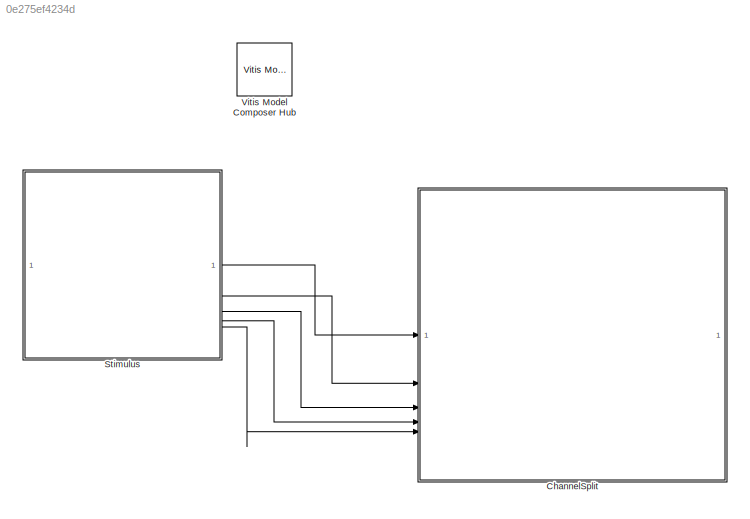
MODEL slx_0e275ef4234d
KIND model
CONFIG AbsTol = auto
CONFIG EnableMultiTasking = off
CONFIG FixedStep = auto
CONFIG MaxStep = auto
CONFIG MinStep = auto
CONFIG RelTol = 1e-3
CONFIG SampleTimeConstraint = Unconstrained
CONFIG SolverName = VariableStepAuto
CONFIG StartTime = 0.0
CONFIG StopTime = 10.0
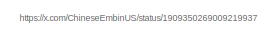
[diagram: ChannelSplit - part 1/12, top left region]
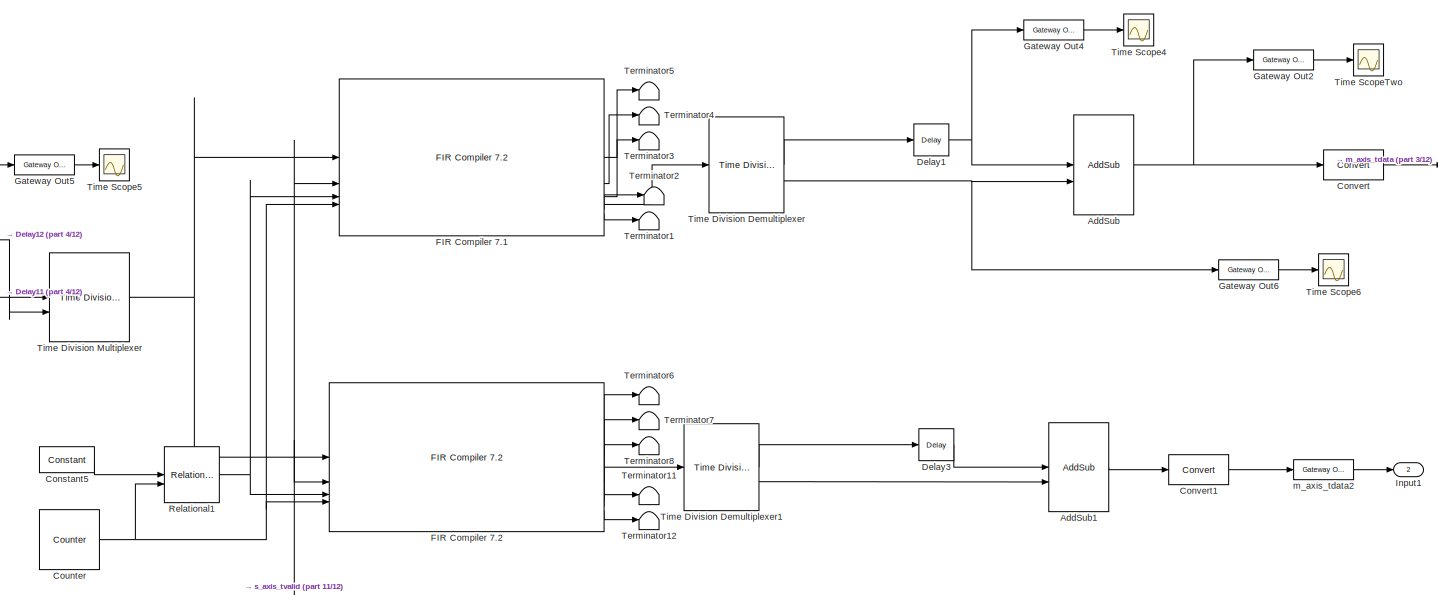
[diagram: ChannelSplit - part 2/12, middle right region]
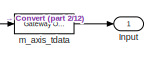
[diagram: ChannelSplit - part 3/12, middle right region]
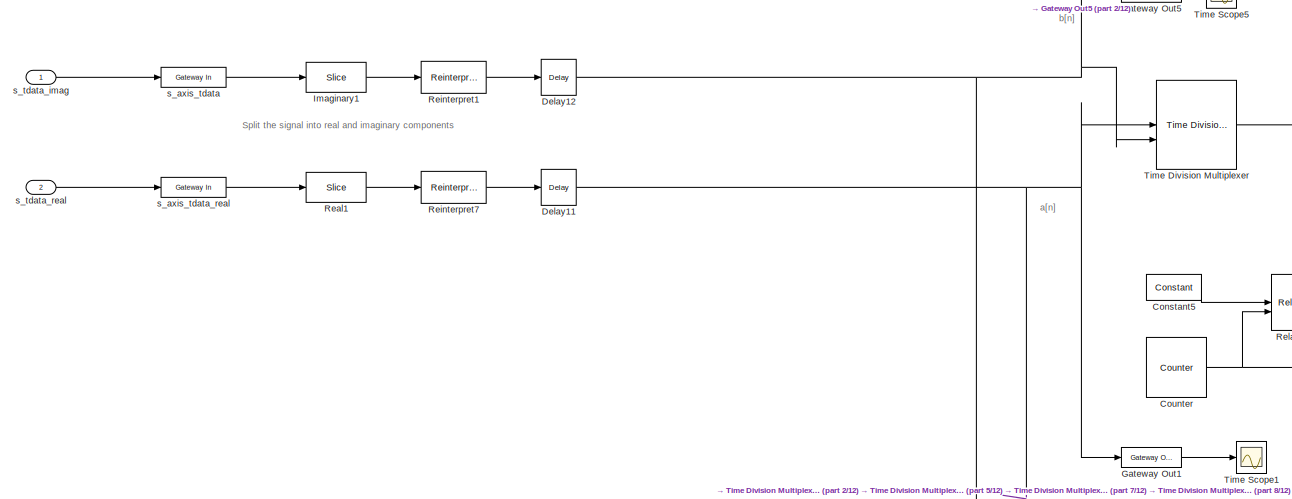
[diagram: ChannelSplit - part 4/12, middle left region]
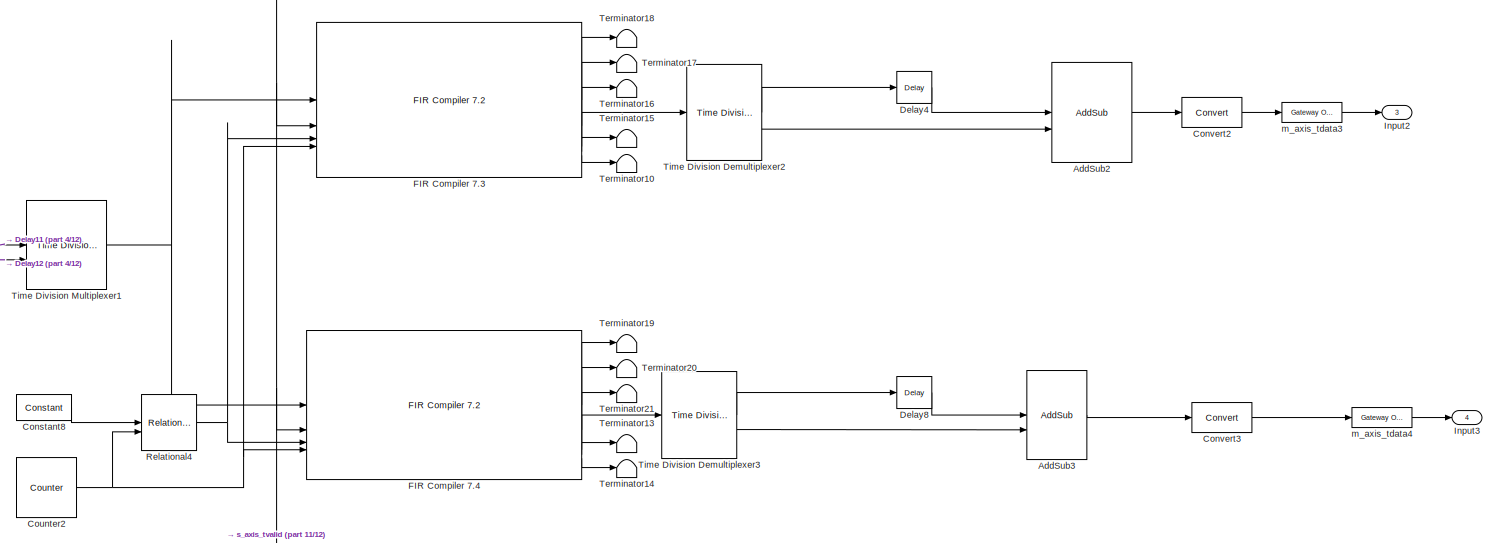
[diagram: ChannelSplit - part 5/12, middle right region]
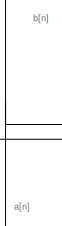
[diagram: ChannelSplit - part 6/12, central region]
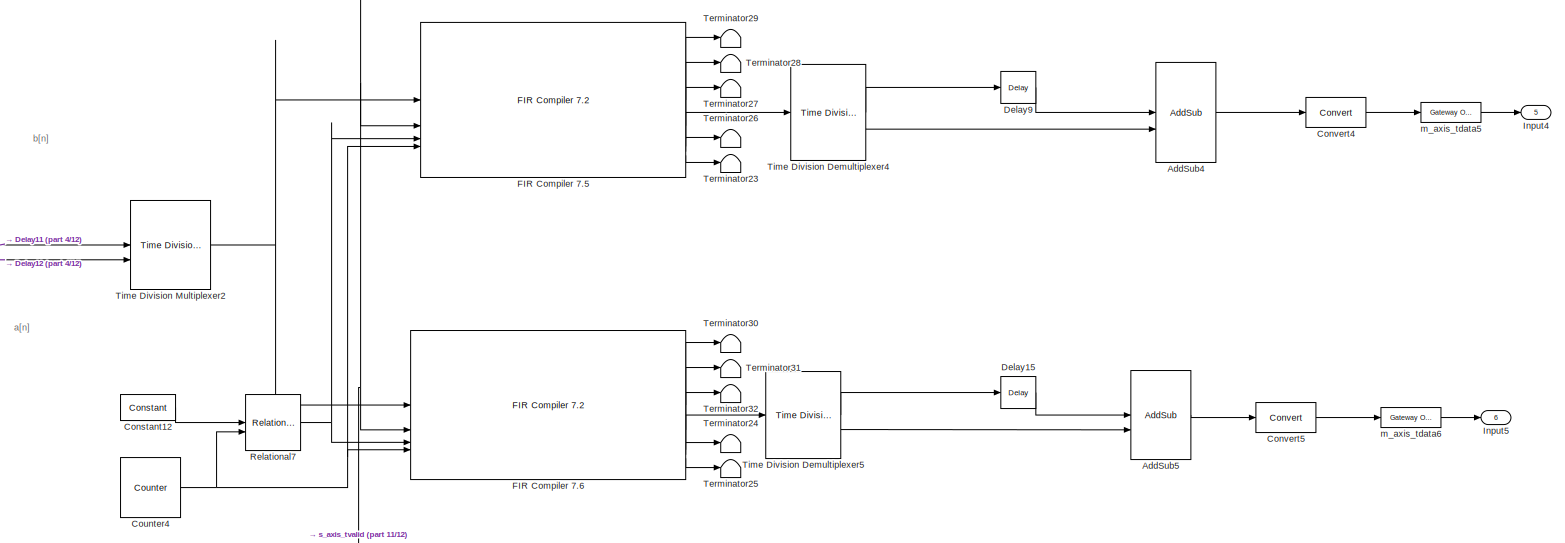
[diagram: ChannelSplit - part 7/12, bottom right region]
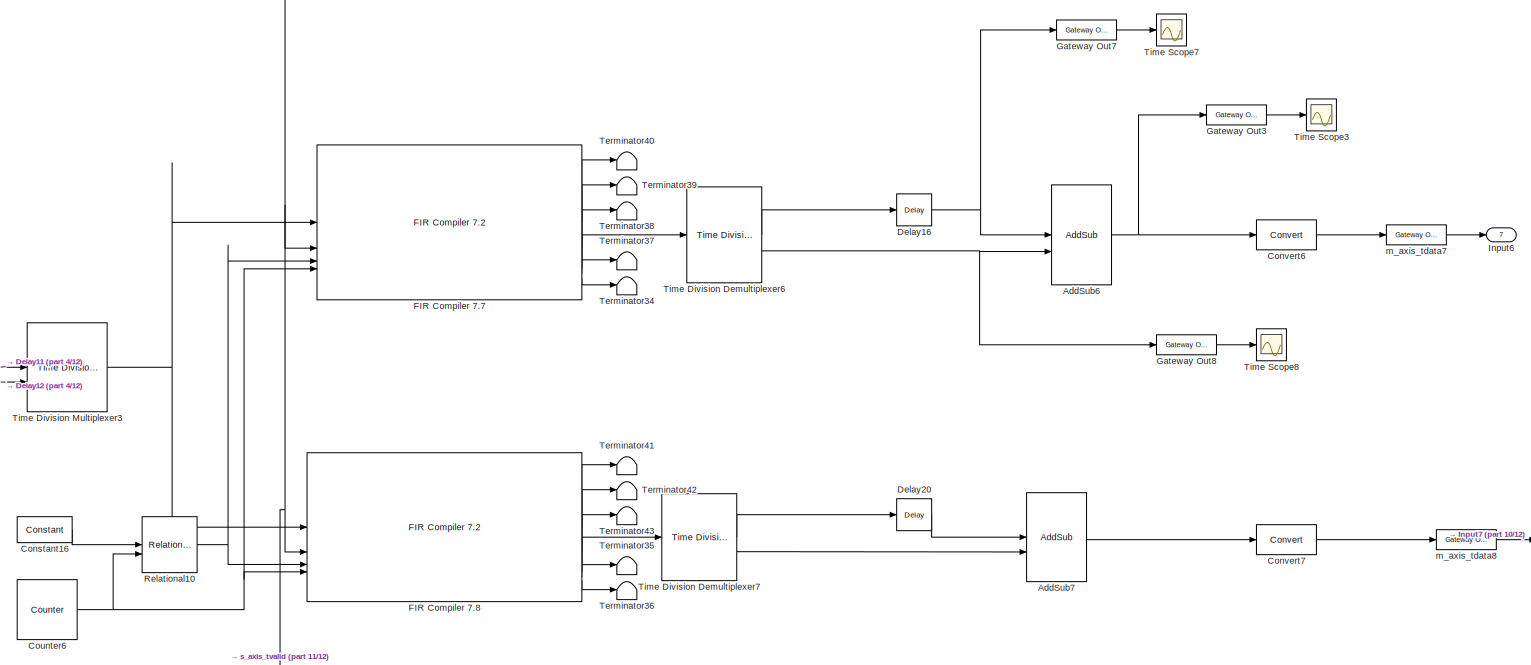
[diagram: ChannelSplit - part 8/12, bottom right region]
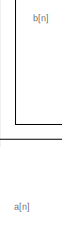
[diagram: ChannelSplit - part 9/12, bottom center region]
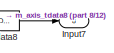
[diagram: ChannelSplit - part 10/12, bottom right region]
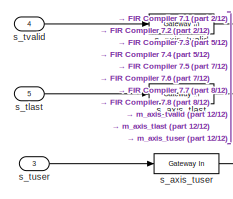
[diagram: ChannelSplit - part 11/12, bottom left region]
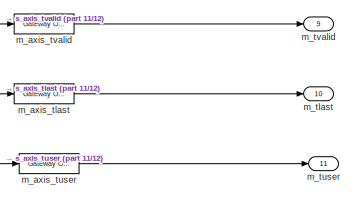
[diagram: ChannelSplit - part 12/12, bottom right region]
BLOCK [SubSystem] ChannelSplit
BLOCK [Reference] ChannelSplit/AddSub  REF=hdlBasic/AddSub
  SourceBlock = hdlBasic/AddSub
  SourceType = Adder/Subtracter Block
BLOCK [Reference] ChannelSplit/AddSub1  REF=hdlBasic/AddSub
  SourceBlock = hdlBasic/AddSub
  SourceType = Adder/Subtracter Block
BLOCK [Reference] ChannelSplit/AddSub2  REF=hdlBasic/AddSub
  SourceBlock = hdlBasic/AddSub
  SourceType = Adder/Subtracter Block
BLOCK [Reference] ChannelSplit/AddSub3  REF=hdlBasic/AddSub
  SourceBlock = hdlBasic/AddSub
  SourceType = Adder/Subtracter Block
BLOCK [Reference] ChannelSplit/AddSub4  REF=hdlBasic/AddSub
  SourceBlock = hdlBasic/AddSub
  SourceType = Adder/Subtracter Block
BLOCK [Reference] ChannelSplit/AddSub5  REF=hdlBasic/AddSub
  SourceBlock = hdlBasic/AddSub
  SourceType = Adder/Subtracter Block
BLOCK [Reference] ChannelSplit/AddSub6  REF=hdlBasic/AddSub
  SourceBlock = hdlBasic/AddSub
  SourceType = Adder/Subtracter Block
BLOCK [Reference] ChannelSplit/AddSub7  REF=hdlBasic/AddSub
  SourceBlock = hdlBasic/AddSub
  SourceType = Adder/Subtracter Block
BLOCK [Reference] ChannelSplit/Constant12  REF=hdlBasic/Constant
  SourceBlock = hdlBasic/Constant
  SourceType = Constant Block Block
BLOCK [Reference] ChannelSplit/Constant16  REF=hdlBasic/Constant
  SourceBlock = hdlBasic/Constant
  SourceType = Constant Block Block
BLOCK [Reference] ChannelSplit/Constant5  REF=hdlBasic/Constant
  SourceBlock = hdlBasic/Constant
  SourceType = Constant Block Block
BLOCK [Reference] ChannelSplit/Constant8  REF=hdlBasic/Constant
  SourceBlock = hdlBasic/Constant
  SourceType = Constant Block Block
BLOCK [Reference] ChannelSplit/Convert  REF=hdlBasic/Convert
  SourceBlock = hdlBasic/Convert
  SourceType = Type Converter Block
BLOCK [Reference] ChannelSplit/Convert1  REF=hdlBasic/Convert
  SourceBlock = hdlBasic/Convert
  SourceType = Type Converter Block
BLOCK [Reference] ChannelSplit/Convert2  REF=hdlBasic/Convert
  SourceBlock = hdlBasic/Convert
  SourceType = Type Converter Block
BLOCK [Reference] ChannelSplit/Convert3  REF=hdlBasic/Convert
  SourceBlock = hdlBasic/Convert
  SourceType = Type Converter Block
BLOCK [Reference] ChannelSplit/Convert4  REF=hdlBasic/Convert
  SourceBlock = hdlBasic/Convert
  SourceType = Type Converter Block
BLOCK [Reference] ChannelSplit/Convert5  REF=hdlBasic/Convert
  SourceBlock = hdlBasic/Convert
  SourceType = Type Converter Block
BLOCK [Reference] ChannelSplit/Convert6  REF=hdlBasic/Convert
  SourceBlock = hdlBasic/Convert
  SourceType = Type Converter Block
BLOCK [Reference] ChannelSplit/Convert7  REF=hdlBasic/Convert
  SourceBlock = hdlBasic/Convert
  SourceType = Type Converter Block
BLOCK [Reference] ChannelSplit/Counter  REF=hdlBasic/Counter
  SourceBlock = hdlBasic/Counter
  SourceType = Counter Block
BLOCK [Reference] ChannelSplit/Counter2  REF=hdlBasic/Counter
  SourceBlock = hdlBasic/Counter
  SourceType = Counter Block
BLOCK [Reference] ChannelSplit/Counter4  REF=hdlBasic/Counter
  SourceBlock = hdlBasic/Counter
  SourceType = Counter Block
BLOCK [Reference] ChannelSplit/Counter6  REF=hdlBasic/Counter
  SourceBlock = hdlBasic/Counter
  SourceType = Counter Block
BLOCK [Reference] ChannelSplit/Delay1  REF=hdlBasic/Delay
  SourceBlock = hdlBasic/Delay
  SourceType = Delay Block
BLOCK [Reference] ChannelSplit/Delay11  REF=hdlBasic/Delay
  SourceBlock = hdlBasic/Delay
  SourceType = Delay Block
BLOCK [Reference] ChannelSplit/Delay12  REF=hdlBasic/Delay
  NameLocation = top
  SourceBlock = hdlBasic/Delay
  SourceType = Delay Block
BLOCK [Reference] ChannelSplit/Delay15  REF=hdlBasic/Delay
  SourceBlock = hdlBasic/Delay
  SourceType = Delay Block
BLOCK [Reference] ChannelSplit/Delay16  REF=hdlBasic/Delay
  SourceBlock = hdlBasic/Delay
  SourceType = Delay Block
BLOCK [Reference] ChannelSplit/Delay20  REF=hdlBasic/Delay
  SourceBlock = hdlBasic/Delay
  SourceType = Delay Block
BLOCK [Reference] ChannelSplit/Delay3  REF=hdlBasic/Delay
  SourceBlock = hdlBasic/Delay
  SourceType = Delay Block
BLOCK [Reference] ChannelSplit/Delay4  REF=hdlBasic/Delay
  SourceBlock = hdlBasic/Delay
  SourceType = Delay Block
BLOCK [Reference] ChannelSplit/Delay8  REF=hdlBasic/Delay
  SourceBlock = hdlBasic/Delay
  SourceType = Delay Block
BLOCK [Reference] ChannelSplit/Delay9  REF=hdlBasic/Delay
  SourceBlock = hdlBasic/Delay
  SourceType = Delay Block
BLOCK [Reference] ChannelSplit/FIR Compiler 7.1  REF=hdlDSPIP/FIR Compiler 7.2 
  SourceBlock = hdlDSPIP/FIR Compiler 7.2
  SourceType = FIR Compiler 7.2 Block
BLOCK [Reference] ChannelSplit/FIR Compiler 7.2  REF=hdlDSPIP/FIR Compiler 7.2 
  SourceBlock = hdlDSPIP/FIR Compiler 7.2
  SourceType = FIR Compiler 7.2 Block
BLOCK [Reference] ChannelSplit/FIR Compiler 7.3  REF=hdlDSPIP/FIR Compiler 7.2 
  SourceBlock = hdlDSPIP/FIR Compiler 7.2
  SourceType = FIR Compiler 7.2 Block
BLOCK [Reference] ChannelSplit/FIR Compiler 7.4  REF=hdlDSPIP/FIR Compiler 7.2 
  SourceBlock = hdlDSPIP/FIR Compiler 7.2
  SourceType = FIR Compiler 7.2 Block
BLOCK [Reference] ChannelSplit/FIR Compiler 7.5  REF=hdlDSPIP/FIR Compiler 7.2 
  SourceBlock = hdlDSPIP/FIR Compiler 7.2
  SourceType = FIR Compiler 7.2 Block
BLOCK [Reference] ChannelSplit/FIR Compiler 7.6  REF=hdlDSPIP/FIR Compiler 7.2 
  SourceBlock = hdlDSPIP/FIR Compiler 7.2
  SourceType = FIR Compiler 7.2 Block
BLOCK [Reference] ChannelSplit/FIR Compiler 7.7  REF=hdlDSPIP/FIR Compiler 7.2 
  SourceBlock = hdlDSPIP/FIR Compiler 7.2
  SourceType = FIR Compiler 7.2 Block
BLOCK [Reference] ChannelSplit/FIR Compiler 7.8  REF=hdlDSPIP/FIR Compiler 7.2 
  SourceBlock = hdlDSPIP/FIR Compiler 7.2
  SourceType = FIR Compiler 7.2 Block
BLOCK [Reference] ChannelSplit/Gateway Out1  REF=hdlBasic/Gateway Out
  SourceBlock = hdlBasic/Gateway Out
  SourceType = Gateway Out Block
BLOCK [Reference] ChannelSplit/Gateway Out2  REF=hdlBasic/Gateway Out
  SourceBlock = hdlBasic/Gateway Out
  SourceType = Gateway Out Block
BLOCK [Reference] ChannelSplit/Gateway Out3  REF=hdlBasic/Gateway Out
  SourceBlock = hdlBasic/Gateway Out
  SourceType = Gateway Out Block
BLOCK [Reference] ChannelSplit/Gateway Out4  REF=hdlBasic/Gateway Out
  SourceBlock = hdlBasic/Gateway Out
  SourceType = Gateway Out Block
BLOCK [Reference] ChannelSplit/Gateway Out5  REF=hdlBasic/Gateway Out
  SourceBlock = hdlBasic/Gateway Out
  SourceType = Gateway Out Block
BLOCK [Reference] ChannelSplit/Gateway Out6  REF=hdlBasic/Gateway Out
  SourceBlock = hdlBasic/Gateway Out
  SourceType = Gateway Out Block
BLOCK [Reference] ChannelSplit/Gateway Out7  REF=hdlBasic/Gateway Out
  SourceBlock = hdlBasic/Gateway Out
  SourceType = Gateway Out Block
BLOCK [Reference] ChannelSplit/Gateway Out8  REF=hdlBasic/Gateway Out
  SourceBlock = hdlBasic/Gateway Out
  SourceType = Gateway Out Block
BLOCK [Reference] ChannelSplit/Imaginary1  REF=hdlBasic/Slice
  Commented = through
  SourceBlock = hdlBasic/Slice
  SourceType = Bit Slice Extractor Block
BLOCK [Outport] ChannelSplit/Input
BLOCK [Outport] ChannelSplit/Input1
  Port = 2
BLOCK [Outport] ChannelSplit/Input2
  Port = 3
BLOCK [Outport] ChannelSplit/Input3
  Port = 4
BLOCK [Outport] ChannelSplit/Input4
  Port = 5
BLOCK [Outport] ChannelSplit/Input5
  Port = 6
BLOCK [Outport] ChannelSplit/Input6
  Port = 7
BLOCK [Outport] ChannelSplit/Input7
  Port = 8
BLOCK [Reference] ChannelSplit/Real1  REF=hdlBasic/Slice
  Commented = through
  SourceBlock = hdlBasic/Slice
  SourceType = Bit Slice Extractor Block
BLOCK [Reference] ChannelSplit/Reinterpret1  REF=hdlBasic/Reinterpret
  SourceBlock = hdlBasic/Reinterpret
  SourceType = Type Reinterpreter Block
BLOCK [Reference] ChannelSplit/Reinterpret7  REF=hdlBasic/Reinterpret
  SourceBlock = hdlBasic/Reinterpret
  SourceType = Type Reinterpreter Block
BLOCK [Reference] ChannelSplit/Relational1  REF=hdlBasic/Relational
  SourceBlock = hdlBasic/Relational
  SourceType = Arithmetic Relational Operator Block
BLOCK [Reference] ChannelSplit/Relational10  REF=hdlBasic/Relational
  SourceBlock = hdlBasic/Relational
  SourceType = Arithmetic Relational Operator Block
BLOCK [Reference] ChannelSplit/Relational4  REF=hdlBasic/Relational
  SourceBlock = hdlBasic/Relational
  SourceType = Arithmetic Relational Operator Block
BLOCK [Reference] ChannelSplit/Relational7  REF=hdlBasic/Relational
  SourceBlock = hdlBasic/Relational
  SourceType = Arithmetic Relational Operator Block
BLOCK [Terminator] ChannelSplit/Terminator1
BLOCK [Terminator] ChannelSplit/Terminator10
BLOCK [Terminator] ChannelSplit/Terminator11
BLOCK [Terminator] ChannelSplit/Terminator12
BLOCK [Terminator] ChannelSplit/Terminator13
BLOCK [Terminator] ChannelSplit/Terminator14
BLOCK [Terminator] ChannelSplit/Terminator15
BLOCK [Terminator] ChannelSplit/Terminator16
BLOCK [Terminator] ChannelSplit/Terminator17
BLOCK [Terminator] ChannelSplit/Terminator18
BLOCK [Terminator] ChannelSplit/Terminator19
BLOCK [Terminator] ChannelSplit/Terminator2
BLOCK [Terminator] ChannelSplit/Terminator20
BLOCK [Terminator] ChannelSplit/Terminator21
BLOCK [Terminator] ChannelSplit/Terminator23
BLOCK [Terminator] ChannelSplit/Terminator24
BLOCK [Terminator] ChannelSplit/Terminator25
BLOCK [Terminator] ChannelSplit/Terminator26
BLOCK [Terminator] ChannelSplit/Terminator27
BLOCK [Terminator] ChannelSplit/Terminator28
BLOCK [Terminator] ChannelSplit/Terminator29
BLOCK [Terminator] ChannelSplit/Terminator3
BLOCK [Terminator] ChannelSplit/Terminator30
BLOCK [Terminator] ChannelSplit/Terminator31
BLOCK [Terminator] ChannelSplit/Terminator32
BLOCK [Terminator] ChannelSplit/Terminator34
BLOCK [Terminator] ChannelSplit/Terminator35
BLOCK [Terminator] ChannelSplit/Terminator36
BLOCK [Terminator] ChannelSplit/Terminator37
BLOCK [Terminator] ChannelSplit/Terminator38
BLOCK [Terminator] ChannelSplit/Terminator39
BLOCK [Terminator] ChannelSplit/Terminator4
BLOCK [Terminator] ChannelSplit/Terminator40
BLOCK [Terminator] ChannelSplit/Terminator41
BLOCK [Terminator] ChannelSplit/Terminator42
BLOCK [Terminator] ChannelSplit/Terminator43
BLOCK [Terminator] ChannelSplit/Terminator5
BLOCK [Terminator] ChannelSplit/Terminator6
BLOCK [Terminator] ChannelSplit/Terminator7
BLOCK [Terminator] ChannelSplit/Terminator8
BLOCK [Reference] ChannelSplit/Time Division Demultiplexer  REF=hdlBasic/Time Division Demultiplexer
  SourceBlock = hdlBasic/Time Division Demultiplexer
  SourceType = Time Division Demultiplexer Block
BLOCK [Reference] ChannelSplit/Time Division Demultiplexer1  REF=hdlBasic/Time Division Demultiplexer
  SourceBlock = hdlBasic/Time Division Demultiplexer
  SourceType = Time Division Demultiplexer Block
BLOCK [Reference] ChannelSplit/Time Division Demultiplexer2  REF=hdlBasic/Time Division Demultiplexer
  SourceBlock = hdlBasic/Time Division Demultiplexer
  SourceType = Time Division Demultiplexer Block
BLOCK [Reference] ChannelSplit/Time Division Demultiplexer3  REF=hdlBasic/Time Division Demultiplexer
  SourceBlock = hdlBasic/Time Division Demultiplexer
  SourceType = Time Division Demultiplexer Block
BLOCK [Reference] ChannelSplit/Time Division Demultiplexer4  REF=hdlBasic/Time Division Demultiplexer
  SourceBlock = hdlBasic/Time Division Demultiplexer
  SourceType = Time Division Demultiplexer Block
BLOCK [Reference] ChannelSplit/Time Division Demultiplexer5  REF=hdlBasic/Time Division Demultiplexer
  SourceBlock = hdlBasic/Time Division Demultiplexer
  SourceType = Time Division Demultiplexer Block
BLOCK [Reference] ChannelSplit/Time Division Demultiplexer6  REF=hdlBasic/Time Division Demultiplexer
  SourceBlock = hdlBasic/Time Division Demultiplexer
  SourceType = Time Division Demultiplexer Block
BLOCK [Reference] ChannelSplit/Time Division Demultiplexer7  REF=hdlBasic/Time Division Demultiplexer
  SourceBlock = hdlBasic/Time Division Demultiplexer
  SourceType = Time Division Demultiplexer Block
BLOCK [Reference] ChannelSplit/Time Division Multiplexer  REF=hdlBasic/Time Division Multiplexer
  SourceBlock = hdlBasic/Time Division Multiplexer
  SourceType = Time Division Multiplexer Block
BLOCK [Reference] ChannelSplit/Time Division Multiplexer1  REF=hdlBasic/Time Division Multiplexer
  SourceBlock = hdlBasic/Time Division Multiplexer
  SourceType = Time Division Multiplexer Block
BLOCK [Reference] ChannelSplit/Time Division Multiplexer2  REF=hdlBasic/Time Division Multiplexer
  SourceBlock = hdlBasic/Time Division Multiplexer
  SourceType = Time Division Multiplexer Block
BLOCK [Reference] ChannelSplit/Time Division Multiplexer3  REF=hdlBasic/Time Division Multiplexer
  SourceBlock = hdlBasic/Time Division Multiplexer
  SourceType = Time Division Multiplexer Block
BLOCK [Scope] ChannelSplit/Time Scope1
  DefaultConfigurationName = spbscopes.TimeScopeBlockCfg
  Floating = off
  NumInputPorts = 1
  ScopeSpecificationString = spbscopes.TimeScopeBlockCfg('CurrentConfiguration', extmgr.ConfigurationSet(extmgr.Configuration('Core','General UI',true,'FigureColor',[0.156862745098039 0.156862745098039 0.156862745098039]),extmgr.Configuration('Core','Source UI',true),extmgr.Configuration('Sources','WiredSimulink',true,'DataLoggingVariableName','ScopeData7'),extmgr.Configuration('Visuals','Time Domain',true,'DisplayPropertyDef...<+1565ch>
  UserDataPersistent = on
BLOCK [Scope] ChannelSplit/Time Scope3
  DefaultConfigurationName = spbscopes.TimeScopeBlockCfg
  Floating = off
  NumInputPorts = 1
  ScopeSpecificationString = spbscopes.TimeScopeBlockCfg('CurrentConfiguration', extmgr.ConfigurationSet(extmgr.Configuration('Core','General UI',true,'FigureColor',[0.156862745098039 0.156862745098039 0.156862745098039]),extmgr.Configuration('Core','Source UI',true),extmgr.Configuration('Sources','WiredSimulink',true,'DataLoggingVariableName','ScopeData1'),extmgr.Configuration('Visuals','Time Domain',true,'DisplayPropertyDef...<+1566ch>
  UserDataPersistent = on
BLOCK [Scope] ChannelSplit/Time Scope4
  DefaultConfigurationName = spbscopes.TimeScopeBlockCfg
  Floating = off
  NumInputPorts = 1
  ScopeSpecificationString = spbscopes.TimeScopeBlockCfg('CurrentConfiguration', extmgr.ConfigurationSet(extmgr.Configuration('Core','General UI',true,'FigureColor',[0.156862745098039 0.156862745098039 0.156862745098039]),extmgr.Configuration('Core','Source UI',true),extmgr.Configuration('Sources','WiredSimulink',true,'DataLoggingVariableName','ScopeData1'),extmgr.Configuration('Visuals','Time Domain',true,'DisplayPropertyDef...<+1560ch>
  UserDataPersistent = on
BLOCK [Scope] ChannelSplit/Time Scope5
  DefaultConfigurationName = spbscopes.TimeScopeBlockCfg
  Floating = off
  NumInputPorts = 1
  ScopeSpecificationString = spbscopes.TimeScopeBlockCfg('CurrentConfiguration', extmgr.ConfigurationSet(extmgr.Configuration('Core','General UI',true,'FigureColor',[0.156862745098039 0.156862745098039 0.156862745098039]),extmgr.Configuration('Core','Source UI',true),extmgr.Configuration('Sources','WiredSimulink',true,'DataLoggingVariableName','ScopeData26'),extmgr.Configuration('Visuals','Time Domain',true,'DisplayPropertyDe...<+1565ch>
  UserDataPersistent = on
BLOCK [Scope] ChannelSplit/Time Scope6
  DefaultConfigurationName = spbscopes.TimeScopeBlockCfg
  Floating = off
  NumInputPorts = 1
  ScopeSpecificationString = spbscopes.TimeScopeBlockCfg('CurrentConfiguration', extmgr.ConfigurationSet(extmgr.Configuration('Core','General UI',true,'FigureColor',[0.156862745098039 0.156862745098039 0.156862745098039]),extmgr.Configuration('Core','Source UI',true),extmgr.Configuration('Sources','WiredSimulink',true,'DataLoggingVariableName','ScopeData2'),extmgr.Configuration('Visuals','Time Domain',true,'DisplayPropertyDef...<+1564ch>
  UserDataPersistent = on
BLOCK [Scope] ChannelSplit/Time Scope7
  DefaultConfigurationName = spbscopes.TimeScopeBlockCfg
  Floating = off
  NumInputPorts = 1
  ScopeSpecificationString = spbscopes.TimeScopeBlockCfg('CurrentConfiguration', extmgr.ConfigurationSet(extmgr.Configuration('Core','General UI',true,'FigureColor',[0.156862745098039 0.156862745098039 0.156862745098039]),extmgr.Configuration('Core','Source UI',true),extmgr.Configuration('Sources','WiredSimulink',true,'DataLoggingVariableName','ScopeData3'),extmgr.Configuration('Visuals','Time Domain',true,'DisplayPropertyDef...<+1565ch>
  UserDataPersistent = on
BLOCK [Scope] ChannelSplit/Time Scope8
  DefaultConfigurationName = spbscopes.TimeScopeBlockCfg
  Floating = off
  NumInputPorts = 1
  ScopeSpecificationString = spbscopes.TimeScopeBlockCfg('CurrentConfiguration', extmgr.ConfigurationSet(extmgr.Configuration('Core','General UI',true,'FigureColor',[0.156862745098039 0.156862745098039 0.156862745098039]),extmgr.Configuration('Core','Source UI',true),extmgr.Configuration('Sources','WiredSimulink',true,'DataLoggingVariableName','ScopeData4'),extmgr.Configuration('Visuals','Time Domain',true,'DisplayPropertyDef...<+1564ch>
  UserDataPersistent = on
BLOCK [Scope] ChannelSplit/Time ScopeTwo
  DefaultConfigurationName = spbscopes.TimeScopeBlockCfg
  Floating = off
  NumInputPorts = 1
  ScopeSpecificationString = spbscopes.TimeScopeBlockCfg('CurrentConfiguration', extmgr.ConfigurationSet(extmgr.Configuration('Core','General UI',true,'FigureColor',[0.156862745098039 0.156862745098039 0.156862745098039]),extmgr.Configuration('Core','Source UI',true),extmgr.Configuration('Sources','WiredSimulink',true,'DataLoggingVariableName','ScopeData1'),extmgr.Configuration('Visuals','Time Domain',true,'DisplayPropertyDef...<+1563ch>
  UserDataPersistent = on
BLOCK [Reference] ChannelSplit/m_axis_tdata  REF=hdlBasic/Gateway Out
  SourceBlock = hdlBasic/Gateway Out
  SourceType = Gateway Out Block
BLOCK [Reference] ChannelSplit/m_axis_tdata2  REF=hdlBasic/Gateway Out
  SourceBlock = hdlBasic/Gateway Out
  SourceType = Gateway Out Block
BLOCK [Reference] ChannelSplit/m_axis_tdata3  REF=hdlBasic/Gateway Out
  SourceBlock = hdlBasic/Gateway Out
  SourceType = Gateway Out Block
BLOCK [Reference] ChannelSplit/m_axis_tdata4  REF=hdlBasic/Gateway Out
  SourceBlock = hdlBasic/Gateway Out
  SourceType = Gateway Out Block
BLOCK [Reference] ChannelSplit/m_axis_tdata5  REF=hdlBasic/Gateway Out
  SourceBlock = hdlBasic/Gateway Out
  SourceType = Gateway Out Block
BLOCK [Reference] ChannelSplit/m_axis_tdata6  REF=hdlBasic/Gateway Out
  SourceBlock = hdlBasic/Gateway Out
  SourceType = Gateway Out Block
BLOCK [Reference] ChannelSplit/m_axis_tdata7  REF=hdlBasic/Gateway Out
  SourceBlock = hdlBasic/Gateway Out
  SourceType = Gateway Out Block
BLOCK [Reference] ChannelSplit/m_axis_tdata8  REF=hdlBasic/Gateway Out
  SourceBlock = hdlBasic/Gateway Out
  SourceType = Gateway Out Block
BLOCK [Reference] ChannelSplit/m_axis_tlast  REF=hdlBasic/Gateway Out
  SourceBlock = hdlBasic/Gateway Out
  SourceType = Gateway Out Block
BLOCK [Reference] ChannelSplit/m_axis_tuser  REF=hdlBasic/Gateway Out
  SourceBlock = hdlBasic/Gateway Out
  SourceType = Gateway Out Block
BLOCK [Reference] ChannelSplit/m_axis_tvalid  REF=hdlBasic/Gateway Out
  NameLocation = top
  SourceBlock = hdlBasic/Gateway Out
  SourceType = Gateway Out Block
BLOCK [Outport] ChannelSplit/m_tlast
  Port = 10
BLOCK [Outport] ChannelSplit/m_tuser
  Port = 11
BLOCK [Outport] ChannelSplit/m_tvalid
  Port = 9
BLOCK [Reference] ChannelSplit/s_axis_tdata  REF=hdlBasic/Gateway In
  SourceBlock = hdlBasic/Gateway In
  SourceType = Gateway In Block
BLOCK [Reference] ChannelSplit/s_axis_tdata_real  REF=hdlBasic/Gateway In
  SourceBlock = hdlBasic/Gateway In
  SourceType = Gateway In Block
BLOCK [Reference] ChannelSplit/s_axis_tlast  REF=hdlBasic/Gateway In
  SourceBlock = hdlBasic/Gateway In
  SourceType = Gateway In Block
BLOCK [Reference] ChannelSplit/s_axis_tuser  REF=hdlBasic/Gateway In
  SourceBlock = hdlBasic/Gateway In
  SourceType = Gateway In Block
BLOCK [Reference] ChannelSplit/s_axis_tvalid  REF=hdlBasic/Gateway In
  SourceBlock = hdlBasic/Gateway In
  SourceType = Gateway In Block
BLOCK [Inport] ChannelSplit/s_tdata_imag
BLOCK [Inport] ChannelSplit/s_tdata_real
  Port = 2
BLOCK [Inport] ChannelSplit/s_tlast
  Port = 5
BLOCK [Inport] ChannelSplit/s_tuser
  Port = 3
BLOCK [Inport] ChannelSplit/s_tvalid
  Port = 4
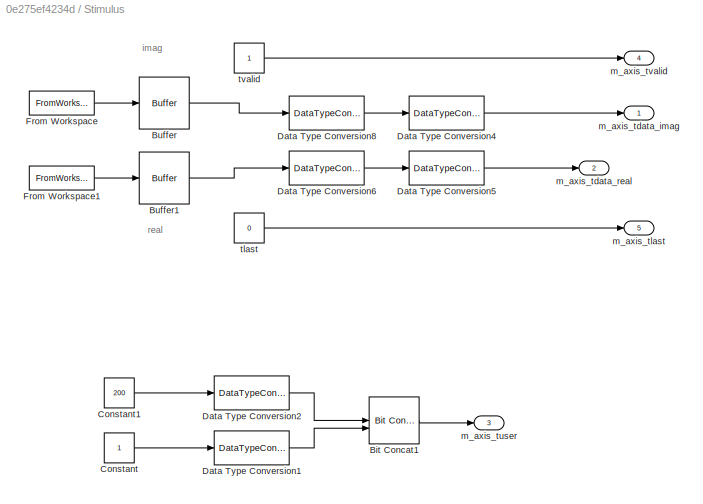
BLOCK [SubSystem] Stimulus
BLOCK [Reference] Stimulus/Bit Concat1  REF=hdlsllib/Logic and Bit
Operations/Bit Concat
  SourceBlock = hdlsllib/Logic and Bit\nOperations/Bit Concat
  SourceType = Bit Concat
BLOCK [Buffer] Stimulus/Buffer
  N = 1
  OutputFrames = off
BLOCK [Buffer] Stimulus/Buffer1
  N = 1
  OutputFrames = off
BLOCK [Constant] Stimulus/Constant
  SampleTime = 1/fs
BLOCK [Constant] Stimulus/Constant1
  SampleTime = 1/fs
  Value = 200
BLOCK [DataTypeConversion] Stimulus/Data Type Conversion1
  OutDataTypeStr = boolean
  RndMeth = Floor
BLOCK [DataTypeConversion] Stimulus/Data Type Conversion2
  OutDataTypeStr = fixdt(1,15,5)
  RndMeth = Floor
BLOCK [DataTypeConversion] Stimulus/Data Type Conversion4
  ConvertRealWorld = Stored Integer (SI)
  OutDataTypeStr = uint16
  RndMeth = Floor
BLOCK [DataTypeConversion] Stimulus/Data Type Conversion5
  ConvertRealWorld = Stored Integer (SI)
  OutDataTypeStr = uint16
  RndMeth = Floor
BLOCK [DataTypeConversion] Stimulus/Data Type Conversion6
  OutDataTypeStr = fixdt(1,16,14)
  RndMeth = Floor
BLOCK [DataTypeConversion] Stimulus/Data Type Conversion8
  OutDataTypeStr = fixdt(1,16,14)
  RndMeth = Floor
BLOCK [FromWorkspace] Stimulus/From Workspace
  OutDataTypeStr = double
  SampleTime = 1500/fs
  VariableName = Qh_noise
BLOCK [FromWorkspace] Stimulus/From Workspace1
  OutDataTypeStr = double
  SampleTime = 1500/fs
  VariableName = Ih_noise
BLOCK [Outport] Stimulus/m_axis_tdata_imag
BLOCK [Outport] Stimulus/m_axis_tdata_real
  Port = 2
BLOCK [Outport] Stimulus/m_axis_tlast
  Port = 5
BLOCK [Outport] Stimulus/m_axis_tuser
  Port = 3
BLOCK [Outport] Stimulus/m_axis_tvalid
  Port = 4
BLOCK [Constant] Stimulus/tlast
  SampleTime = 1/fs
  Value = 0
BLOCK [Constant] Stimulus/tvalid
  SampleTime = 1/fs
BLOCK [Reference] Vitis Model Composer Hub  REF=vmcUtilities/Vitis Model Composer Hub
  SourceBlock = vmcUtilities/Vitis Model Composer Hub
  SourceType = VMC Hub
  Tag = genX
  UserDataPersistent = on
ANNOTATION ChannelSplit: Split the signal into real and imaginary components
ANNOTATION ChannelSplit: a[n]
ANNOTATION ChannelSplit: b[n]
ANNOTATION ChannelSplit: https://x.com/ChineseEmbinUS/status/1909350269009219937
ANNOTATION Stimulus: imag
ANNOTATION Stimulus: real
LINE ChannelSplit/AddSub1:1 -> ChannelSplit/Convert1:1
LINE ChannelSplit/AddSub2:1 -> ChannelSplit/Convert2:1
LINE ChannelSplit/AddSub3:1 -> ChannelSplit/Convert3:1
LINE ChannelSplit/AddSub4:1 -> ChannelSplit/Convert4:1
LINE ChannelSplit/AddSub5:1 -> ChannelSplit/Convert5:1
NET ChannelSplit/AddSub6:1 -> ChannelSplit/Convert6:1, ChannelSplit/Gateway Out3:1
LINE ChannelSplit/AddSub7:1 -> ChannelSplit/Convert7:1
NET ChannelSplit/AddSub:1 -> ChannelSplit/Convert:1, ChannelSplit/Gateway Out2:1
LINE ChannelSplit/Constant12:1 -> ChannelSplit/Relational7:1
LINE ChannelSplit/Constant16:1 -> ChannelSplit/Relational10:1
LINE ChannelSplit/Constant5:1 -> ChannelSplit/Relational1:1
LINE ChannelSplit/Constant8:1 -> ChannelSplit/Relational4:1
LINE ChannelSplit/Convert1:1 -> ChannelSplit/m_axis_tdata2:1
LINE ChannelSplit/Convert2:1 -> ChannelSplit/m_axis_tdata3:1
LINE ChannelSplit/Convert3:1 -> ChannelSplit/m_axis_tdata4:1
LINE ChannelSplit/Convert4:1 -> ChannelSplit/m_axis_tdata5:1
LINE ChannelSplit/Convert5:1 -> ChannelSplit/m_axis_tdata6:1
LINE ChannelSplit/Convert6:1 -> ChannelSplit/m_axis_tdata7:1
LINE ChannelSplit/Convert7:1 -> ChannelSplit/m_axis_tdata8:1
LINE ChannelSplit/Convert:1 -> ChannelSplit/m_axis_tdata:1
NET ChannelSplit/Counter2:1 -> ChannelSplit/FIR Compiler 7.3:4, ChannelSplit/FIR Compiler 7.4:4, ChannelSplit/Relational4:2
NET ChannelSplit/Counter4:1 -> ChannelSplit/FIR Compiler 7.5:4, ChannelSplit/FIR Compiler 7.6:4, ChannelSplit/Relational7:2
NET ChannelSplit/Counter6:1 -> ChannelSplit/FIR Compiler 7.7:4, ChannelSplit/FIR Compiler 7.8:4, ChannelSplit/Relational10:2
NET ChannelSplit/Counter:1 -> ChannelSplit/FIR Compiler 7.1:4, ChannelSplit/FIR Compiler 7.2:4, ChannelSplit/Relational1:2
NET ChannelSplit/Delay11:1 -> ChannelSplit/Gateway Out1:1, ChannelSplit/Time Division Multiplexer1:1, ChannelSplit/Time Division Multiplexer2:1, ChannelSplit/Time Division Multiplexer3:1, ChannelSplit/Time Division Multiplexer:1
NET ChannelSplit/Delay12:1 -> ChannelSplit/Gateway Out5:1, ChannelSplit/Time Division Multiplexer1:2, ChannelSplit/Time Division Multiplexer2:2, ChannelSplit/Time Division Multiplexer3:2, ChannelSplit/Time Division Multiplexer:2
LINE ChannelSplit/Delay15:1 -> ChannelSplit/AddSub5:1
NET ChannelSplit/Delay16:1 -> ChannelSplit/AddSub6:1, ChannelSplit/Gateway Out7:1
NET ChannelSplit/Delay1:1 -> ChannelSplit/AddSub:1, ChannelSplit/Gateway Out4:1
LINE ChannelSplit/Delay20:1 -> ChannelSplit/AddSub7:1
LINE ChannelSplit/Delay3:1 -> ChannelSplit/AddSub1:1
LINE ChannelSplit/Delay4:1 -> ChannelSplit/AddSub2:1
LINE ChannelSplit/Delay8:1 -> ChannelSplit/AddSub3:1
LINE ChannelSplit/Delay9:1 -> ChannelSplit/AddSub4:1
LINE ChannelSplit/FIR Compiler 7.1:1 -> ChannelSplit/Terminator5:1
LINE ChannelSplit/FIR Compiler 7.1:2 -> ChannelSplit/Terminator4:1
LINE ChannelSplit/FIR Compiler 7.1:3 -> ChannelSplit/Terminator3:1
LINE ChannelSplit/FIR Compiler 7.1:4 -> ChannelSplit/Time Division Demultiplexer:1
LINE ChannelSplit/FIR Compiler 7.1:5 -> ChannelSplit/Terminator2:1
LINE ChannelSplit/FIR Compiler 7.1:6 -> ChannelSplit/Terminator1:1
LINE ChannelSplit/FIR Compiler 7.2:1 -> ChannelSplit/Terminator6:1
LINE ChannelSplit/FIR Compiler 7.2:2 -> ChannelSplit/Terminator7:1
LINE ChannelSplit/FIR Compiler 7.2:3 -> ChannelSplit/Terminator8:1
LINE ChannelSplit/FIR Compiler 7.2:4 -> ChannelSplit/Time Division Demultiplexer1:1
LINE ChannelSplit/FIR Compiler 7.2:5 -> ChannelSplit/Terminator11:1
LINE ChannelSplit/FIR Compiler 7.2:6 -> ChannelSplit/Terminator12:1
LINE ChannelSplit/FIR Compiler 7.3:1 -> ChannelSplit/Terminator18:1
LINE ChannelSplit/FIR Compiler 7.3:2 -> ChannelSplit/Terminator17:1
LINE ChannelSplit/FIR Compiler 7.3:3 -> ChannelSplit/Terminator16:1
LINE ChannelSplit/FIR Compiler 7.3:4 -> ChannelSplit/Time Division Demultiplexer2:1
LINE ChannelSplit/FIR Compiler 7.3:5 -> ChannelSplit/Terminator15:1
LINE ChannelSplit/FIR Compiler 7.3:6 -> ChannelSplit/Terminator10:1
LINE ChannelSplit/FIR Compiler 7.4:1 -> ChannelSplit/Terminator19:1
LINE ChannelSplit/FIR Compiler 7.4:2 -> ChannelSplit/Terminator20:1
LINE ChannelSplit/FIR Compiler 7.4:3 -> ChannelSplit/Terminator21:1
LINE ChannelSplit/FIR Compiler 7.4:4 -> ChannelSplit/Time Division Demultiplexer3:1
LINE ChannelSplit/FIR Compiler 7.4:5 -> ChannelSplit/Terminator13:1
LINE ChannelSplit/FIR Compiler 7.4:6 -> ChannelSplit/Terminator14:1
LINE ChannelSplit/FIR Compiler 7.5:1 -> ChannelSplit/Terminator29:1
LINE ChannelSplit/FIR Compiler 7.5:2 -> ChannelSplit/Terminator28:1
LINE ChannelSplit/FIR Compiler 7.5:3 -> ChannelSplit/Terminator27:1
LINE ChannelSplit/FIR Compiler 7.5:4 -> ChannelSplit/Time Division Demultiplexer4:1
LINE ChannelSplit/FIR Compiler 7.5:5 -> ChannelSplit/Terminator26:1
LINE ChannelSplit/FIR Compiler 7.5:6 -> ChannelSplit/Terminator23:1
LINE ChannelSplit/FIR Compiler 7.6:1 -> ChannelSplit/Terminator30:1
LINE ChannelSplit/FIR Compiler 7.6:2 -> ChannelSplit/Terminator31:1
LINE ChannelSplit/FIR Compiler 7.6:3 -> ChannelSplit/Terminator32:1
LINE ChannelSplit/FIR Compiler 7.6:4 -> ChannelSplit/Time Division Demultiplexer5:1
LINE ChannelSplit/FIR Compiler 7.6:5 -> ChannelSplit/Terminator24:1
LINE ChannelSplit/FIR Compiler 7.6:6 -> ChannelSplit/Terminator25:1
LINE ChannelSplit/FIR Compiler 7.7:1 -> ChannelSplit/Terminator40:1
LINE ChannelSplit/FIR Compiler 7.7:2 -> ChannelSplit/Terminator39:1
LINE ChannelSplit/FIR Compiler 7.7:3 -> ChannelSplit/Terminator38:1
LINE ChannelSplit/FIR Compiler 7.7:4 -> ChannelSplit/Time Division Demultiplexer6:1
LINE ChannelSplit/FIR Compiler 7.7:5 -> ChannelSplit/Terminator37:1
LINE ChannelSplit/FIR Compiler 7.7:6 -> ChannelSplit/Terminator34:1
LINE ChannelSplit/FIR Compiler 7.8:1 -> ChannelSplit/Terminator41:1
LINE ChannelSplit/FIR Compiler 7.8:2 -> ChannelSplit/Terminator42:1
LINE ChannelSplit/FIR Compiler 7.8:3 -> ChannelSplit/Terminator43:1
LINE ChannelSplit/FIR Compiler 7.8:4 -> ChannelSplit/Time Division Demultiplexer7:1
LINE ChannelSplit/FIR Compiler 7.8:5 -> ChannelSplit/Terminator35:1
LINE ChannelSplit/FIR Compiler 7.8:6 -> ChannelSplit/Terminator36:1
LINE ChannelSplit/Gateway Out1:1 -> ChannelSplit/Time Scope1:1
LINE ChannelSplit/Gateway Out2:1 -> ChannelSplit/Time ScopeTwo:1
LINE ChannelSplit/Gateway Out3:1 -> ChannelSplit/Time Scope3:1
LINE ChannelSplit/Gateway Out4:1 -> ChannelSplit/Time Scope4:1
LINE ChannelSplit/Gateway Out5:1 -> ChannelSplit/Time Scope5:1
LINE ChannelSplit/Gateway Out6:1 -> ChannelSplit/Time Scope6:1
LINE ChannelSplit/Gateway Out7:1 -> ChannelSplit/Time Scope7:1
LINE ChannelSplit/Gateway Out8:1 -> ChannelSplit/Time Scope8:1
LINE ChannelSplit/Imaginary1:1 -> ChannelSplit/Reinterpret1:1
LINE ChannelSplit/Real1:1 -> ChannelSplit/Reinterpret7:1
LINE ChannelSplit/Reinterpret1:1 -> ChannelSplit/Delay12:1
LINE ChannelSplit/Reinterpret7:1 -> ChannelSplit/Delay11:1
NET ChannelSplit/Relational10:1 -> ChannelSplit/FIR Compiler 7.7:3, ChannelSplit/FIR Compiler 7.8:3
NET ChannelSplit/Relational1:1 -> ChannelSplit/FIR Compiler 7.1:3, ChannelSplit/FIR Compiler 7.2:3
NET ChannelSplit/Relational4:1 -> ChannelSplit/FIR Compiler 7.3:3, ChannelSplit/FIR Compiler 7.4:3
NET ChannelSplit/Relational7:1 -> ChannelSplit/FIR Compiler 7.5:3, ChannelSplit/FIR Compiler 7.6:3
LINE ChannelSplit/Time Division Demultiplexer1:1 -> ChannelSplit/Delay3:1
LINE ChannelSplit/Time Division Demultiplexer1:2 -> ChannelSplit/AddSub1:2
LINE ChannelSplit/Time Division Demultiplexer2:1 -> ChannelSplit/Delay4:1
LINE ChannelSplit/Time Division Demultiplexer2:2 -> ChannelSplit/AddSub2:2
LINE ChannelSplit/Time Division Demultiplexer3:1 -> ChannelSplit/Delay8:1
LINE ChannelSplit/Time Division Demultiplexer3:2 -> ChannelSplit/AddSub3:2
LINE ChannelSplit/Time Division Demultiplexer4:1 -> ChannelSplit/Delay9:1
LINE ChannelSplit/Time Division Demultiplexer4:2 -> ChannelSplit/AddSub4:2
LINE ChannelSplit/Time Division Demultiplexer5:1 -> ChannelSplit/Delay15:1
LINE ChannelSplit/Time Division Demultiplexer5:2 -> ChannelSplit/AddSub5:2
LINE ChannelSplit/Time Division Demultiplexer6:1 -> ChannelSplit/Delay16:1
NET ChannelSplit/Time Division Demultiplexer6:2 -> ChannelSplit/AddSub6:2, ChannelSplit/Gateway Out8:1
LINE ChannelSplit/Time Division Demultiplexer7:1 -> ChannelSplit/Delay20:1
LINE ChannelSplit/Time Division Demultiplexer7:2 -> ChannelSplit/AddSub7:2
LINE ChannelSplit/Time Division Demultiplexer:1 -> ChannelSplit/Delay1:1
NET ChannelSplit/Time Division Demultiplexer:2 -> ChannelSplit/AddSub:2, ChannelSplit/Gateway Out6:1
NET ChannelSplit/Time Division Multiplexer1:1 -> ChannelSplit/FIR Compiler 7.3:1, ChannelSplit/FIR Compiler 7.4:1
NET ChannelSplit/Time Division Multiplexer2:1 -> ChannelSplit/FIR Compiler 7.5:1, ChannelSplit/FIR Compiler 7.6:1
NET ChannelSplit/Time Division Multiplexer3:1 -> ChannelSplit/FIR Compiler 7.7:1, ChannelSplit/FIR Compiler 7.8:1
NET ChannelSplit/Time Division Multiplexer:1 -> ChannelSplit/FIR Compiler 7.1:1, ChannelSplit/FIR Compiler 7.2:1
LINE ChannelSplit/m_axis_tdata2:1 -> ChannelSplit/Input1:1
LINE ChannelSplit/m_axis_tdata3:1 -> ChannelSplit/Input2:1
LINE ChannelSplit/m_axis_tdata4:1 -> ChannelSplit/Input3:1
LINE ChannelSplit/m_axis_tdata5:1 -> ChannelSplit/Input4:1
LINE ChannelSplit/m_axis_tdata6:1 -> ChannelSplit/Input5:1
LINE ChannelSplit/m_axis_tdata7:1 -> ChannelSplit/Input6:1
LINE ChannelSplit/m_axis_tdata8:1 -> ChannelSplit/Input7:1
LINE ChannelSplit/m_axis_tdata:1 -> ChannelSplit/Input:1
LINE ChannelSplit/m_axis_tlast:1 -> ChannelSplit/m_tlast:1
LINE ChannelSplit/m_axis_tuser:1 -> ChannelSplit/m_tuser:1
LINE ChannelSplit/m_axis_tvalid:1 -> ChannelSplit/m_tvalid:1
LINE ChannelSplit/s_axis_tdata:1 -> ChannelSplit/Imaginary1:1
LINE ChannelSplit/s_axis_tdata_real:1 -> ChannelSplit/Real1:1
LINE ChannelSplit/s_axis_tlast:1 -> ChannelSplit/m_axis_tlast:1
LINE ChannelSplit/s_axis_tuser:1 -> ChannelSplit/m_axis_tuser:1
NET ChannelSplit/s_axis_tvalid:1 -> ChannelSplit/FIR Compiler 7.1:2, ChannelSplit/FIR Compiler 7.2:2, ChannelSplit/FIR Compiler 7.3:2, ChannelSplit/FIR Compiler 7.4:2, ChannelSplit/FIR Compiler 7.5:2, ChannelSplit/FIR Compiler 7.6:2, ChannelSplit/FIR Compiler 7.7:2, ChannelSplit/FIR Compiler 7.8:2, ChannelSplit/m_axis_tvalid:1
LINE ChannelSplit/s_tdata_imag:1 -> ChannelSplit/s_axis_tdata:1
LINE ChannelSplit/s_tdata_real:1 -> ChannelSplit/s_axis_tdata_real:1
LINE ChannelSplit/s_tlast:1 -> ChannelSplit/s_axis_tlast:1
LINE ChannelSplit/s_tuser:1 -> ChannelSplit/s_axis_tuser:1
LINE ChannelSplit/s_tvalid:1 -> ChannelSplit/s_axis_tvalid:1
LINE Stimulus/Bit Concat1:1 -> Stimulus/m_axis_tuser:1
LINE Stimulus/Buffer1:1 -> Stimulus/Data Type Conversion6:1
LINE Stimulus/Buffer:1 -> Stimulus/Data Type Conversion8:1
LINE Stimulus/Constant1:1 -> Stimulus/Data Type Conversion2:1
LINE Stimulus/Constant:1 -> Stimulus/Data Type Conversion1:1
LINE Stimulus/Data Type Conversion1:1 -> Stimulus/Bit Concat1:2
LINE Stimulus/Data Type Conversion2:1 -> Stimulus/Bit Concat1:1
LINE Stimulus/Data Type Conversion4:1 -> Stimulus/m_axis_tdata_imag:1
LINE Stimulus/Data Type Conversion5:1 -> Stimulus/m_axis_tdata_real:1
LINE Stimulus/Data Type Conversion6:1 -> Stimulus/Data Type Conversion5:1
LINE Stimulus/Data Type Conversion8:1 -> Stimulus/Data Type Conversion4:1
LINE Stimulus/From Workspace1:1 -> Stimulus/Buffer1:1
LINE Stimulus/From Workspace:1 -> Stimulus/Buffer:1
LINE Stimulus/tlast:1 -> Stimulus/m_axis_tlast:1
LINE Stimulus/tvalid:1 -> Stimulus/m_axis_tvalid:1
LINE Stimulus:1 -> ChannelSplit:1
LINE Stimulus:2 -> ChannelSplit:2
LINE Stimulus:3 -> ChannelSplit:3
LINE Stimulus:4 -> ChannelSplit:4
LINE Stimulus:5 -> ChannelSplit:5
note: NET lines group one-source signal fan-out (src -> all destinations, sorted); 1:1 wires keep LINE
